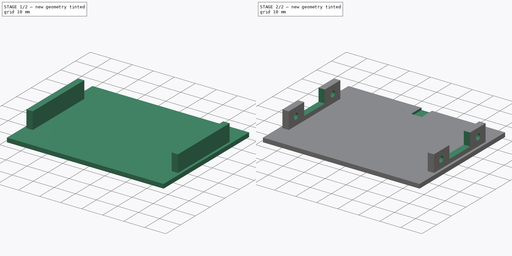
[diagram: build sequence overview — one tinted view per stage of 2, left to right]
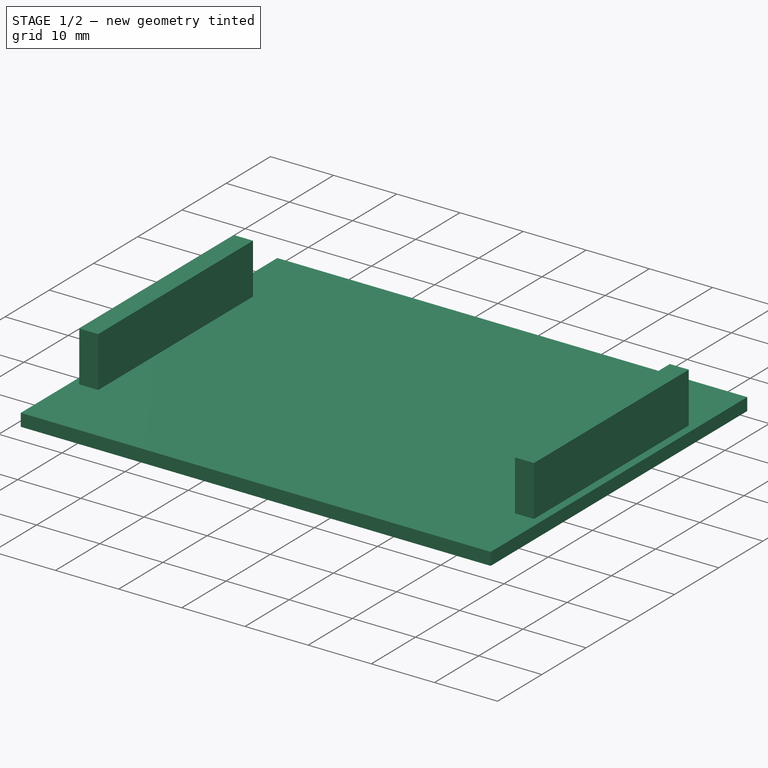
[diagram: stage 1 of 2 — iso view after this stage's code; geometry added in this stage tinted green]
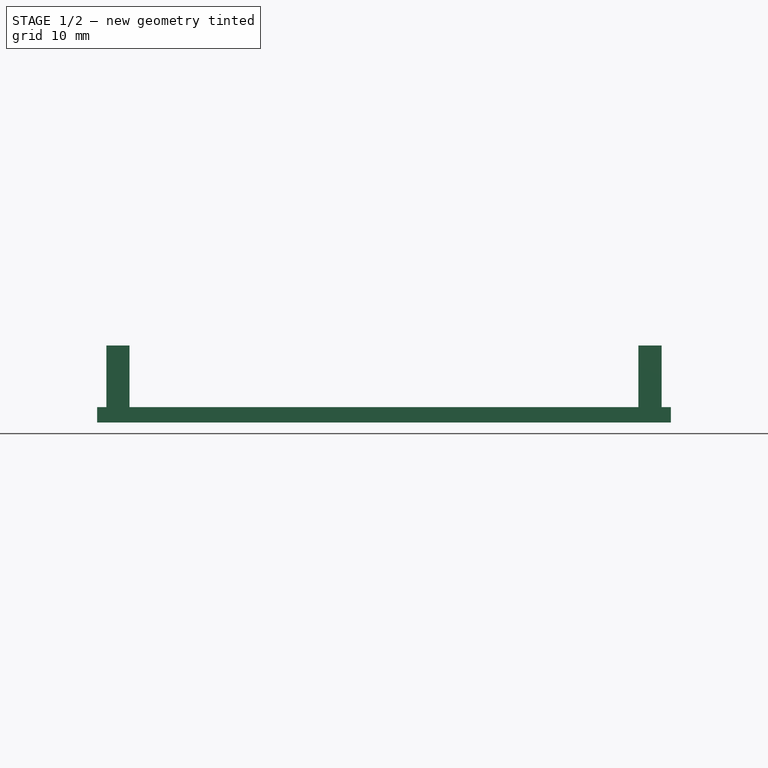
[diagram: stage 1 of 2 — front view after this stage's code; geometry added in this stage tinted green]
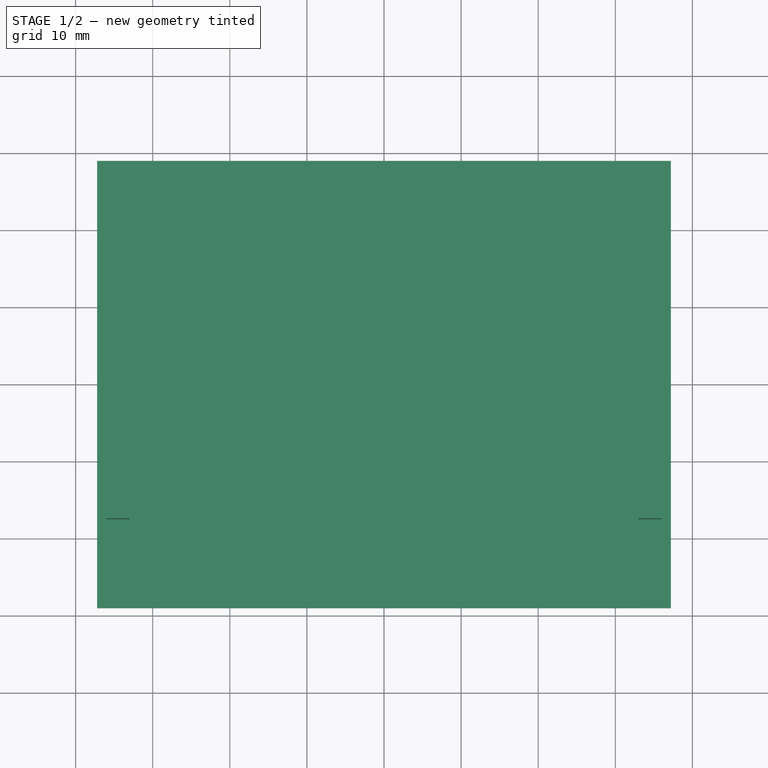
[diagram: stage 1 of 2 — top view after this stage's code; geometry added in this stage tinted green]
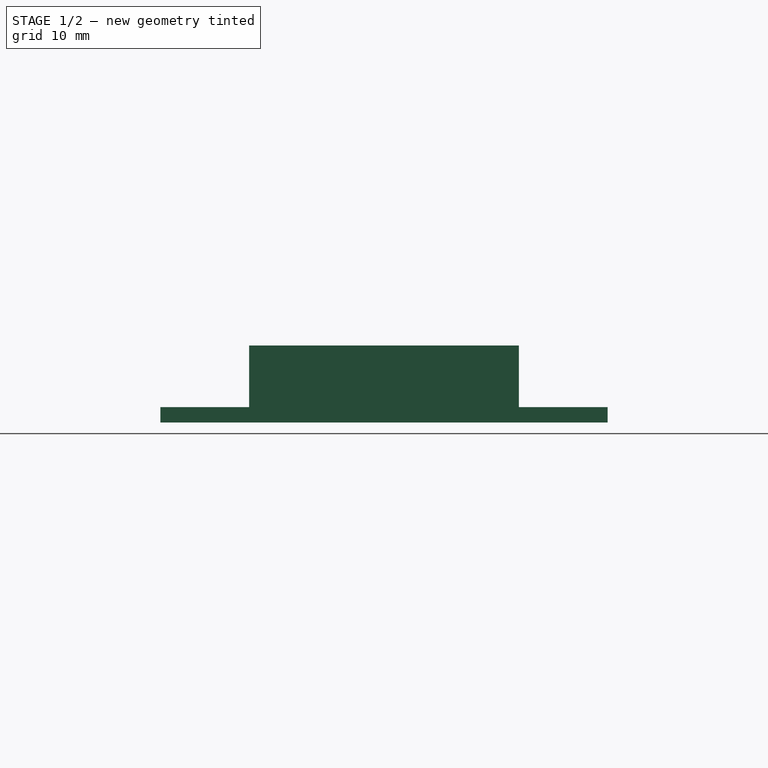
[diagram: stage 1 of 2 — right view after this stage's code; geometry added in this stage tinted green]
FCSTD DOCUMENT  (FreeCAD 0.19R)
Label: cover
License: All rights reserved
LicenseURL: http://en.wikipedia.org/wiki/All_rights_reserved
objects: Sketcher::SketchObject×4, PartDesign::Pad×2, PartDesign::Pocket×2, PartDesign::Body×1
note: 13 computed .brp shape members not serialized (recipe doc carries the construction recipe); baked Part::Feature solids carry a one-line shape summary decoded from their .brp

FEATURE [Sketcher::SketchObject] Sketch
  FullyConstrained = true
  MapMode = 5
  Support = -> [XY_Plane]
  sketch-geometry (4):
    g0: LineSegment StartX=-37.2 StartY=29 StartZ=0 EndX=37.2 EndY=29 EndZ=0
    g1: LineSegment StartX=37.2 StartY=29 StartZ=0 EndX=37.2 EndY=-29 EndZ=0
    g2: LineSegment StartX=37.2 StartY=-29 StartZ=0 EndX=-37.2 EndY=-29 EndZ=0
    g3: LineSegment StartX=-37.2 StartY=-29 StartZ=0 EndX=-37.2 EndY=29 EndZ=0
  constraints (10):
    c: Coincident(g0,g1)
    c: Coincident(g1,g2)
    c: Coincident(g2,g3)
    c: Coincident(g3,g0)
    c: Horizontal(g2)
    c: Vertical(g3)
    c: DistanceX(g0,g0) = 74.4
    c: DistanceY(g1,g1) = 58
    c: Symmetric(g1,g0,g-1)
    c: Symmetric(g0,g0,g-2)
FEATURE [PartDesign::Pad] Pad
  Direction = (1,1,1)
  Length = 2
  Length2 = 100
  Profile = -> Sketch
  Type = 0
FEATURE [Sketcher::SketchObject] Sketch001
  FullyConstrained = true
  MapMode = 5
  Placement = pos=(0,0,2) rot=(0,0,1;0rad)
  Support = -> [Pad]
  sketch-geometry (8):
    g0: LineSegment StartX=-36 StartY=17.5 StartZ=0 EndX=-33 EndY=17.5 EndZ=0
    g1: LineSegment StartX=-33 StartY=17.5 StartZ=0 EndX=-33 EndY=-17.5 EndZ=0
    g2: LineSegment StartX=-33 StartY=-17.5 StartZ=0 EndX=-36 EndY=-17.5 EndZ=0
    g3: LineSegment StartX=-36 StartY=-17.5 StartZ=0 EndX=-36 EndY=17.5 EndZ=0
    g4: LineSegment StartX=36 StartY=17.5 StartZ=0 EndX=33 EndY=17.5 EndZ=0
    g5: LineSegment StartX=33 StartY=17.5 StartZ=0 EndX=33 EndY=-17.5 EndZ=0
    g6: LineSegment StartX=33 StartY=-17.5 StartZ=0 EndX=36 EndY=-17.5 EndZ=0
    g7: LineSegment StartX=36 StartY=-17.5 StartZ=0 EndX=36 EndY=17.5 EndZ=0
  constraints (22):
    c: Coincident(g0,g1)
    c: Coincident(g1,g2)
    c: Coincident(g2,g3)
    c: Coincident(g3,g0)
    c: Horizontal(g0)
    c: Horizontal(g2)
    c: Vertical(g1)
    c: Vertical(g3)
    c: Coincident(g4,g5)
    c: Coincident(g5,g6)
    c: Coincident(g6,g7)
    c: Coincident(g7,g4)
    c: Horizontal(g4)
    c: Horizontal(g6)
    c: Vertical(g5)
    c: DistanceX(g4,g4) = 3
    c: Equal(g4,g0)
    c: Symmetric(g4,g0,g-2)
    c: Horizontal(g5,g1)
    c: Symmetric(g6,g4,g-1)
    c: DistanceY(g7,g7) = 35
    c: DistanceX(g2,g6) = 72
FEATURE [PartDesign::Pad] Pad001
  BaseFeature = -> Pad
  Direction = (1,1,1)
  Length = 8
  Length2 = 100
  Profile = -> Sketch001
  Type = 0
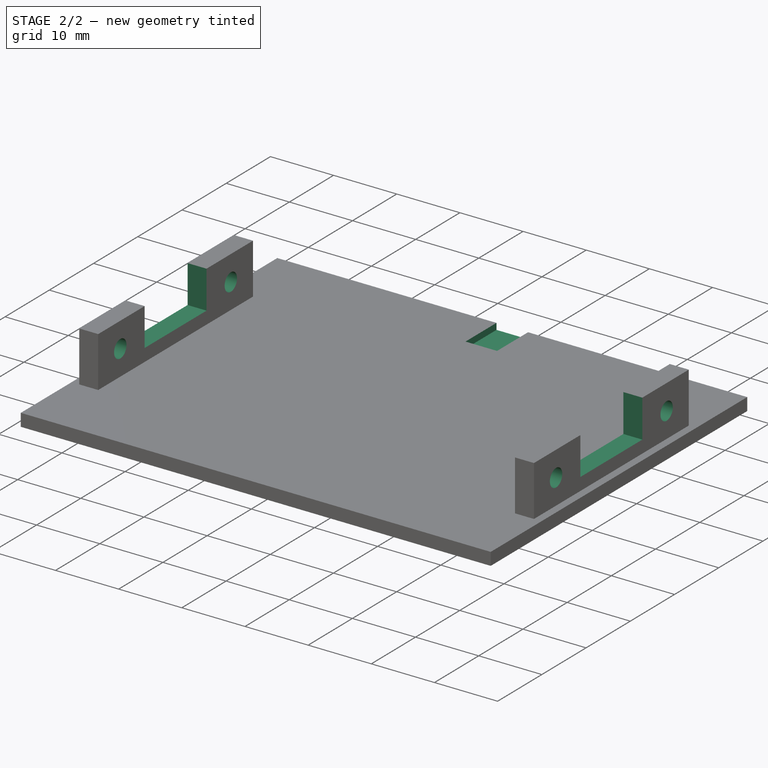
[diagram: stage 2 of 2 — iso view after this stage's code; geometry added in this stage tinted green]
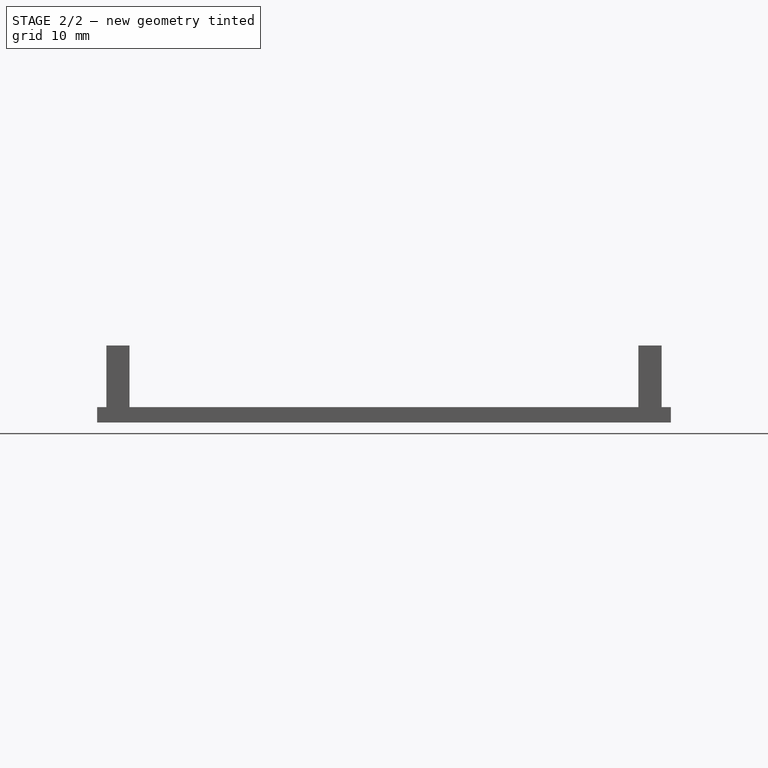
[diagram: stage 2 of 2 — front view after this stage's code; geometry added in this stage tinted green]
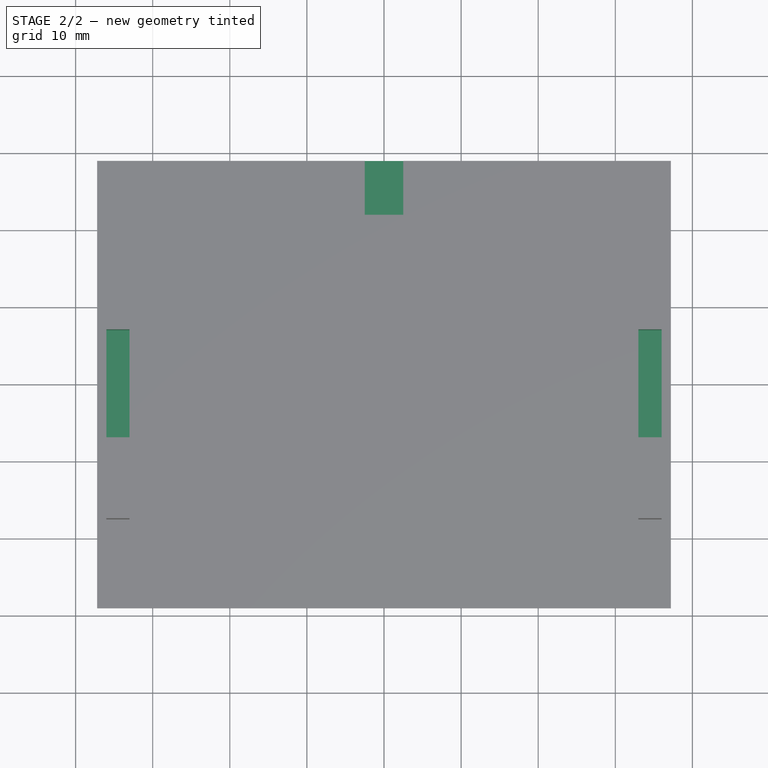
[diagram: stage 2 of 2 — top view after this stage's code; geometry added in this stage tinted green]
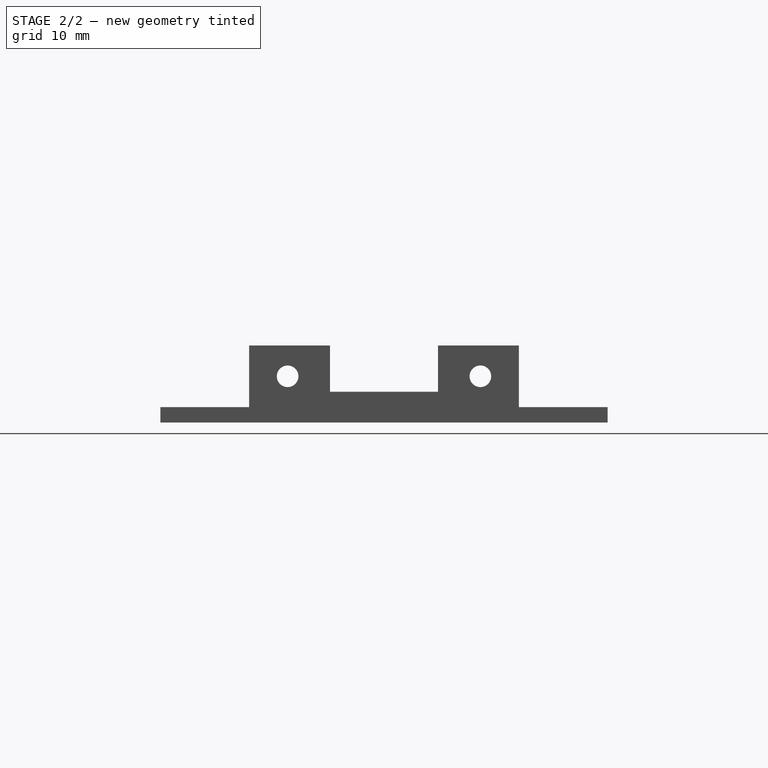
[diagram: stage 2 of 2 — right view after this stage's code; geometry added in this stage tinted green]
FEATURE [Sketcher::SketchObject] Sketch002
  FullyConstrained = false
  MapMode = 5
  Placement = pos=(-36,0,0) rot=(0.57735,-0.57735,-0.57735;2.0944rad)
  Support = -> [Pad001]
  sketch-geometry (6):
    g0: Circle CenterX=12.5 CenterY=6 CenterZ=0 NormalX=0 NormalY=0 NormalZ=1 AngleXU=0 Radius=1.4
    g1: Circle CenterX=-12.5 CenterY=6 CenterZ=0 NormalX=0 NormalY=0 NormalZ=1 AngleXU=0 Radius=1.4
    g2: LineSegment StartX=-7 StartY=13.707 StartZ=0 EndX=7 EndY=13.707 EndZ=0
    g3: LineSegment StartX=7 StartY=13.707 StartZ=0 EndX=7 EndY=4 EndZ=0
    g4: LineSegment StartX=7 StartY=4 StartZ=0 EndX=-7 EndY=4 EndZ=0
    g5: LineSegment StartX=-7 StartY=4 StartZ=0 EndX=-7 EndY=13.707 EndZ=0
  constraints (15):
    c: Symmetric(g0,g1,g-2)
    c: DistanceX(g1,g0) = 25
    c: Radius(g0) = 1.4
    c: Equal(g0,g1)
    c: DistanceY(g-1,g1) = 6
    c: Coincident(g2,g3)
    c: Coincident(g3,g4)
    c: Coincident(g4,g5)
    c: Coincident(g5,g2)
    c: Horizontal(g4)
    c: Vertical(g3)
    c: Vertical(g5)
    c: Symmetric(g2,g2,g-2)
    c: DistanceX(g2,g2) = 14
    c: DistanceY(g-1,g3) = 4
FEATURE [PartDesign::Pocket] Pocket
  BaseFeature = -> Pad001
  Length = 5
  Length2 = 100
  Profile = -> Sketch002
  Type = 1
FEATURE [Sketcher::SketchObject] Sketch003
  FullyConstrained = true
  MapMode = 5
  Placement = pos=(0,0,2) rot=(0,0,1;0rad)
  Support = -> [Pocket]
  sketch-geometry (4):
    g0: LineSegment StartX=-2.5 StartY=29 StartZ=0 EndX=2.5 EndY=29 EndZ=0
    g1: LineSegment StartX=2.5 StartY=29 StartZ=0 EndX=2.5 EndY=22 EndZ=0
    g2: LineSegment StartX=2.5 StartY=22 StartZ=0 EndX=-2.5 EndY=22 EndZ=0
    g3: LineSegment StartX=-2.5 StartY=22 StartZ=0 EndX=-2.5 EndY=29 EndZ=0
  constraints (11):
    c: Coincident(g0,g1)
    c: Coincident(g1,g2)
    c: Coincident(g2,g3)
    c: Coincident(g3,g0)
    c: Horizontal(g2)
    c: Vertical(g1)
    c: Vertical(g3)
    c: DistanceX(g0,g0) = 5
    c: Symmetric(g0,g0,g-2)
    c: DistanceY(g3,g3) = 7
    c: DistanceY(g-1,g0) = 29
FEATURE [PartDesign::Pocket] Pocket001
  BaseFeature = -> Pocket
  Length = 1
  Length2 = 100
  Profile = -> Sketch003
  Type = 0
FEATURE [PartDesign::Body] Body
  Group = -> [Sketch,Pad,Sketch001,Pad001,Sketch002,Pocket,Sketch003,Pocket001]
  Origin = -> Origin
  Tip = -> Pocket001
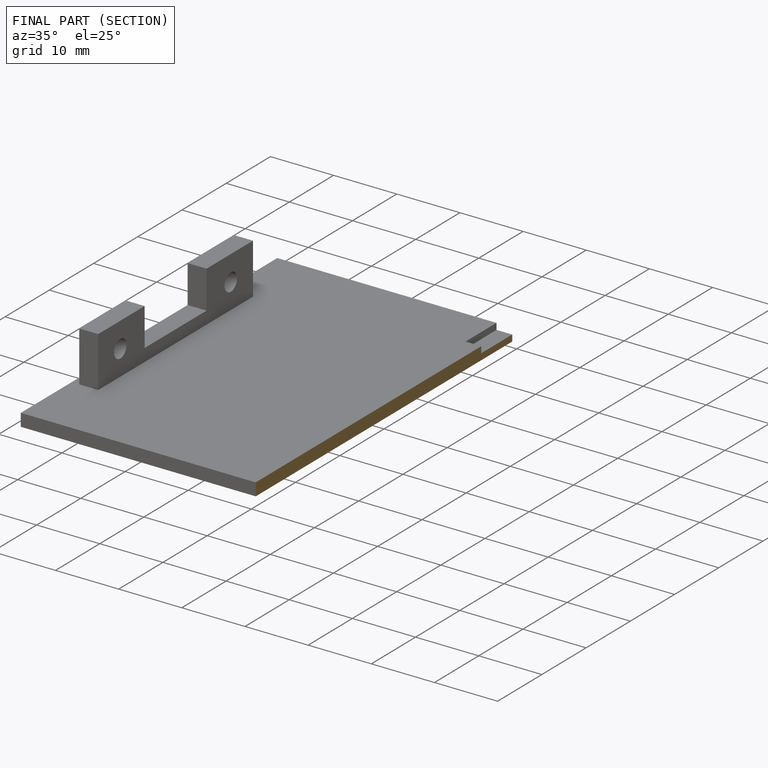
[diagram: finished part — half-section view (interior)]
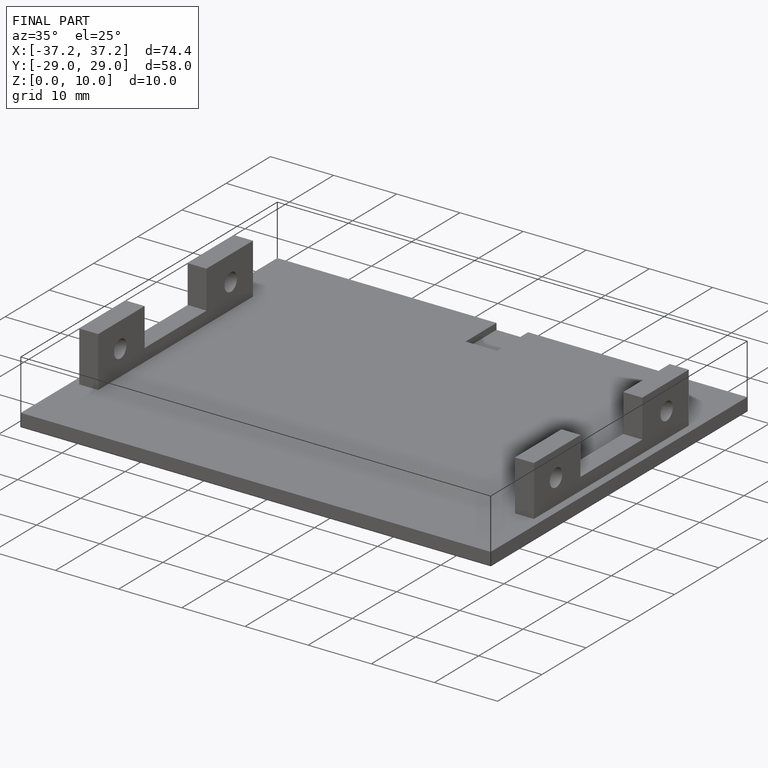
[diagram: finished part — iso view with bounding-box wireframe]
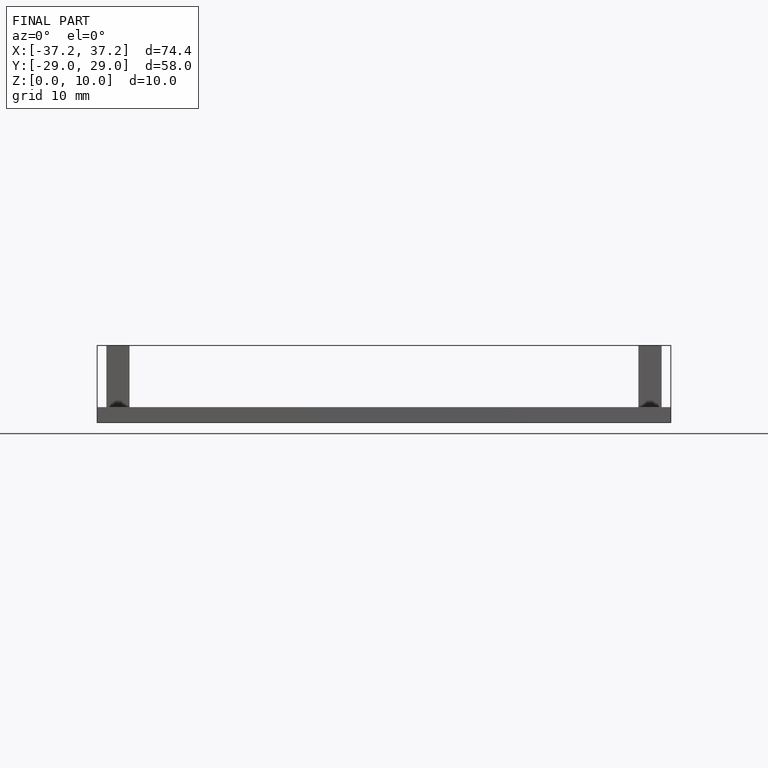
[diagram: finished part — front view with bounding-box wireframe]
